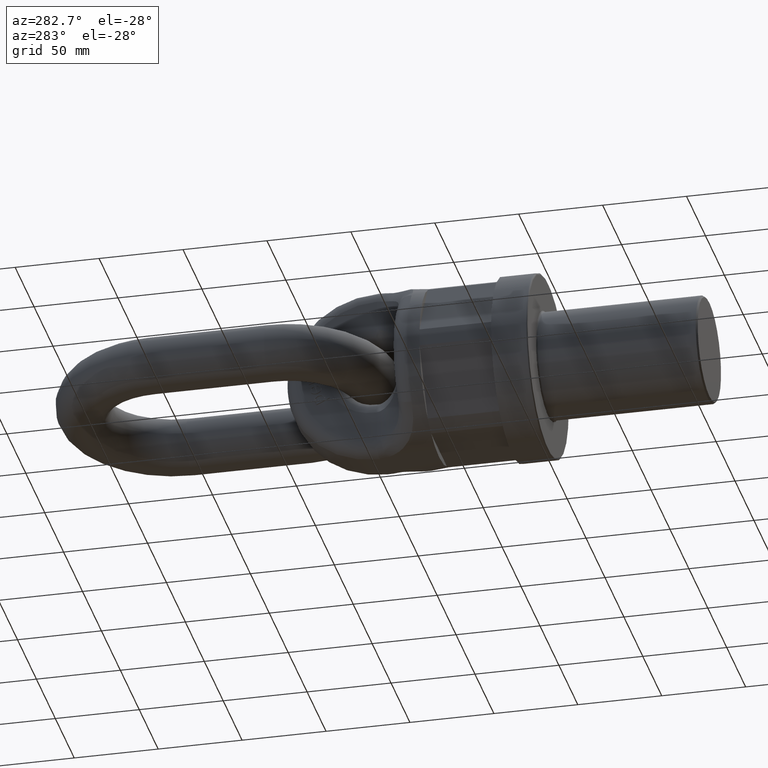
[diagram: clean part render]
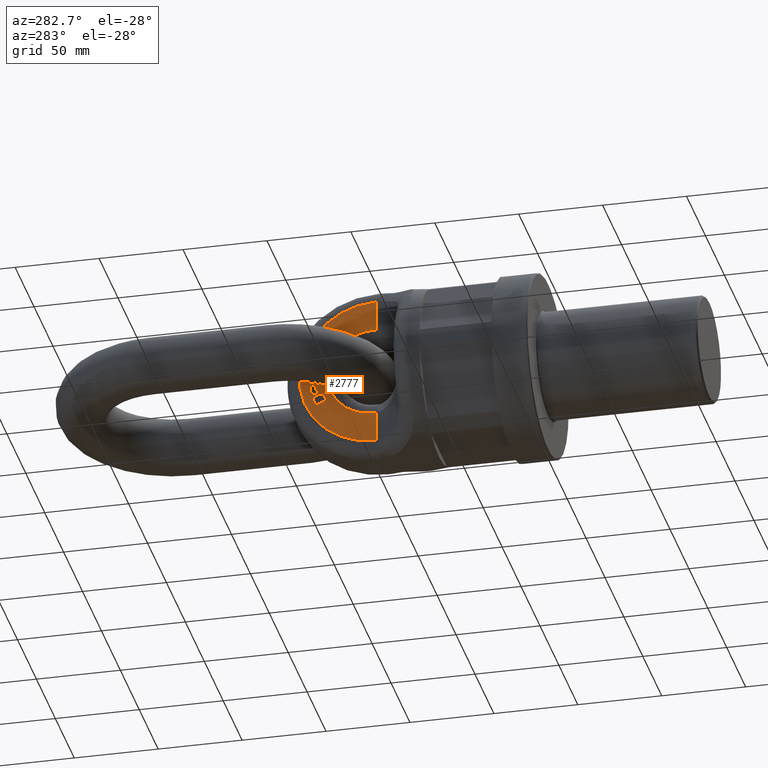
[diagram: same view with one face highlighted and labeled with its STEP entity id]
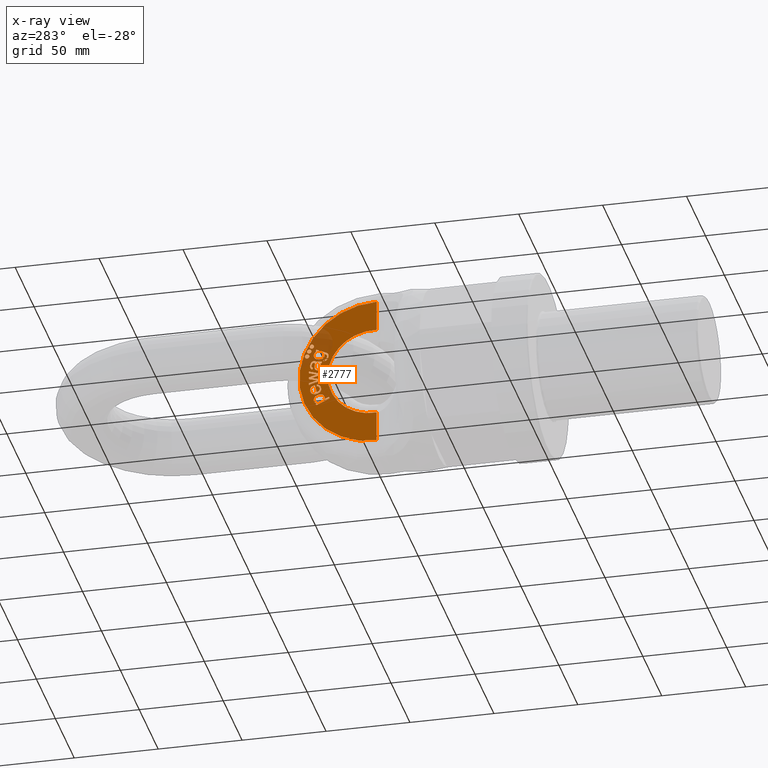
[diagram: x-ray of the same camera — body ghosted, the highlighted face saturated]
A machine part, auxiliary view. The second image highlights one B-rep face of the part: STEP entity #2777.
The next image is the same camera in x-ray: the body ghosted, the highlighted face saturated — about 11% of this face is hidden behind the body in this view.
In plain terms, the highlighted planar face has unit normal (-1, -0, -0).
Its self-contained STEP definition (entity closure, byte-faithful):
#505=B_SPLINE_CURVE_WITH_KNOTS('',3,(#8318,#8319,#8320,#8321,#8322,#8323),
 .UNSPECIFIED.,.F.,.F.,(4,2,4),(0.,0.670501232539032,1.),.UNSPECIFIED.);
#506=B_SPLINE_CURVE_WITH_KNOTS('',3,(#8325,#8326,#8327,#8328),
 .UNSPECIFIED.,.F.,.F.,(4,4),(0.,1.),.UNSPECIFIED.);
#507=B_SPLINE_CURVE_WITH_KNOTS('',3,(#8330,#8331,#8332,#8333,#8334,#8335),
 .UNSPECIFIED.,.F.,.F.,(4,2,4),(0.,0.470198675496687,1.),.UNSPECIFIED.);
#508=B_SPLINE_CURVE_WITH_KNOTS('',3,(#8337,#8338,#8339,#8340),
 .UNSPECIFIED.,.F.,.F.,(4,4),(0.,1.),.UNSPECIFIED.);
#509=B_SPLINE_CURVE_WITH_KNOTS('',3,(#8344,#8345,#8346,#8347),
 .UNSPECIFIED.,.F.,.F.,(4,4),(0.,1.),.UNSPECIFIED.);
#510=B_SPLINE_CURVE_WITH_KNOTS('',3,(#8349,#8350,#8351,#8352,#8353,#8354),
 .UNSPECIFIED.,.F.,.F.,(4,2,4),(0.,0.444196428571431,1.),.UNSPECIFIED.);
#511=B_SPLINE_CURVE_WITH_KNOTS('',3,(#8356,#8357,#8358,#8359,#8360,#8361),
 .UNSPECIFIED.,.F.,.F.,(4,2,4),(0.,0.499999999999984,1.),.UNSPECIFIED.);
#512=B_SPLINE_CURVE_WITH_KNOTS('',3,(#8363,#8364,#8365,#8366,#8367,#8368,
#8369,#8370,#8371,#8372,#8373,#8374,#8375,#8376),.UNSPECIFIED.,.F.,.F.,
(4,2,2,2,2,2,4),(0.,0.149537296690965,0.323681996634877,0.497826696578794,
0.672812675266401,0.847798653954006,1.),.UNSPECIFIED.);
#513=B_SPLINE_CURVE_WITH_KNOTS('',3,(#8381,#8382,#8383,#8384),
 .UNSPECIFIED.,.F.,.F.,(4,4),(0.,1.),.UNSPECIFIED.);
#514=B_SPLINE_CURVE_WITH_KNOTS('',3,(#8389,#8390,#8391,#8392),
 .UNSPECIFIED.,.F.,.F.,(4,4),(0.,1.),.UNSPECIFIED.);
#515=B_SPLINE_CURVE_WITH_KNOTS('',3,(#8394,#8395,#8396,#8397,#8398,#8399),
 .UNSPECIFIED.,.F.,.F.,(4,2,4),(0.,0.565320665083133,1.),.UNSPECIFIED.);
#516=B_SPLINE_CURVE_WITH_KNOTS('',3,(#8401,#8402,#8403,#8404),
 .UNSPECIFIED.,.F.,.F.,(4,4),(0.,1.),.UNSPECIFIED.);
#517=B_SPLINE_CURVE_WITH_KNOTS('',3,(#8408,#8409,#8410,#8411),
 .UNSPECIFIED.,.F.,.F.,(4,4),(0.,1.),.UNSPECIFIED.);
#518=B_SPLINE_CURVE_WITH_KNOTS('',3,(#8413,#8414,#8415,#8416,#8417,#8418),
 .UNSPECIFIED.,.F.,.F.,(4,2,4),(0.,0.429530201342282,1.),.UNSPECIFIED.);
#519=B_SPLINE_CURVE_WITH_KNOTS('',3,(#8420,#8421,#8422,#8423,#8424,#8425,
#8426,#8427,#8428,#8429,#8430,#8431),.UNSPECIFIED.,.F.,.F.,(4,2,2,2,2,4),
(0.,0.253866185683637,0.504362466247582,0.754858746811527,0.877429373405762,
1.),.UNSPECIFIED.);
#520=B_SPLINE_CURVE_WITH_KNOTS('',3,(#8455,#8456,#8457,#8458),
 .UNSPECIFIED.,.F.,.F.,(4,4),(0.,1.),.UNSPECIFIED.);
#521=B_SPLINE_CURVE_WITH_KNOTS('',3,(#8460,#8461,#8462,#8463),
 .UNSPECIFIED.,.F.,.F.,(4,4),(0.,1.),.UNSPECIFIED.);
#522=B_SPLINE_CURVE_WITH_KNOTS('',3,(#8485,#8486,#8487,#8488),
 .UNSPECIFIED.,.F.,.F.,(4,4),(0.,1.),.UNSPECIFIED.);
#523=B_SPLINE_CURVE_WITH_KNOTS('',3,(#8493,#8494,#8495,#8496),
 .UNSPECIFIED.,.F.,.F.,(4,4),(0.,1.),.UNSPECIFIED.);
#524=B_SPLINE_CURVE_WITH_KNOTS('',3,(#8501,#8502,#8503,#8504),
 .UNSPECIFIED.,.F.,.F.,(4,4),(0.,1.),.UNSPECIFIED.);
#525=B_SPLINE_CURVE_WITH_KNOTS('',3,(#8506,#8507,#8508,#8509,#8510,#8511,
#8512,#8513,#8514,#8515),.UNSPECIFIED.,.F.,.F.,(4,2,2,2,4),(0.,0.296954694318543,
0.533565653962729,0.771641518085927,1.),.UNSPECIFIED.);
#526=B_SPLINE_CURVE_WITH_KNOTS('',3,(#8517,#8518,#8519,#8520),
 .UNSPECIFIED.,.F.,.F.,(4,4),(0.,1.),.UNSPECIFIED.);
#527=B_SPLINE_CURVE_WITH_KNOTS('',3,(#8524,#8525,#8526,#8527),
 .UNSPECIFIED.,.F.,.F.,(4,4),(0.,1.),.UNSPECIFIED.);
#528=B_SPLINE_CURVE_WITH_KNOTS('',3,(#8529,#8530,#8531,#8532),
 .UNSPECIFIED.,.F.,.F.,(4,4),(0.,1.),.UNSPECIFIED.);
#529=B_SPLINE_CURVE_WITH_KNOTS('',3,(#8534,#8535,#8536,#8537),
 .UNSPECIFIED.,.F.,.F.,(4,4),(0.,1.),.UNSPECIFIED.);
#530=B_SPLINE_CURVE_WITH_KNOTS('',3,(#8539,#8540,#8541,#8542),
 .UNSPECIFIED.,.F.,.F.,(4,4),(0.,1.),.UNSPECIFIED.);
#531=B_SPLINE_CURVE_WITH_KNOTS('',3,(#8544,#8545,#8546,#8547,#8548,#8549),
 .UNSPECIFIED.,.F.,.F.,(4,2,4),(0.,0.44021739130435,1.),.UNSPECIFIED.);
#532=B_SPLINE_CURVE_WITH_KNOTS('',3,(#8551,#8552,#8553,#8554),
 .UNSPECIFIED.,.F.,.F.,(4,4),(0.,1.),.UNSPECIFIED.);
#533=B_SPLINE_CURVE_WITH_KNOTS('',3,(#8558,#8559,#8560,#8561),
 .UNSPECIFIED.,.F.,.F.,(4,4),(0.,1.),.UNSPECIFIED.);
#534=B_SPLINE_CURVE_WITH_KNOTS('',3,(#8563,#8564,#8565,#8566,#8567,#8568),
 .UNSPECIFIED.,.F.,.F.,(4,2,4),(0.,0.52387640449438,1.),.UNSPECIFIED.);
#535=B_SPLINE_CURVE_WITH_KNOTS('',3,(#8570,#8571,#8572,#8573),
 .UNSPECIFIED.,.F.,.F.,(4,4),(0.,1.),.UNSPECIFIED.);
#536=B_SPLINE_CURVE_WITH_KNOTS('',3,(#8575,#8576,#8577,#8578,#8579,#8580,
#8581,#8582),.UNSPECIFIED.,.F.,.F.,(4,2,2,4),(0.,0.269230769230785,0.527644230769252,
1.),.UNSPECIFIED.);
#537=B_SPLINE_CURVE_WITH_KNOTS('',3,(#8586,#8587,#8588,#8589),
 .UNSPECIFIED.,.F.,.F.,(4,4),(0.,1.),.UNSPECIFIED.);
#538=B_SPLINE_CURVE_WITH_KNOTS('',3,(#8591,#8592,#8593,#8594),
 .UNSPECIFIED.,.F.,.F.,(4,4),(0.,1.),.UNSPECIFIED.);
#539=B_SPLINE_CURVE_WITH_KNOTS('',3,(#8596,#8597,#8598,#8599,#8600,#8601,
#8602,#8603,#8604,#8605),.UNSPECIFIED.,.F.,.F.,(4,2,2,2,4),(0.,0.245990994549338,
0.507925849856496,0.769860705163653,1.),.UNSPECIFIED.);
#2181=LINE('',#8315,#2483);
#2182=LINE('',#8342,#2484);
#2183=LINE('',#8378,#2485);
#2184=LINE('',#8380,#2486);
#2185=LINE('',#8387,#2487);
#2186=LINE('',#8406,#2488);
#2187=LINE('',#8438,#2489);
#2188=LINE('',#8443,#2490);
#2189=LINE('',#8446,#2491);
#2190=LINE('',#8449,#2492);
#2191=LINE('',#8451,#2493);
#2192=LINE('',#8453,#2494);
#2193=LINE('',#8465,#2495);
#2194=LINE('',#8467,#2496);
#2195=LINE('',#8469,#2497);
#2196=LINE('',#8471,#2498);
#2197=LINE('',#8473,#2499);
#2198=LINE('',#8475,#2500);
#2199=LINE('',#8477,#2501);
#2200=LINE('',#8479,#2502);
#2201=LINE('',#8481,#2503);
#2202=LINE('',#8483,#2504);
#2203=LINE('',#8490,#2505);
#2204=LINE('',#8492,#2506);
#2205=LINE('',#8499,#2507);
#2206=LINE('',#8522,#2508);
#2207=LINE('',#8556,#2509);
#2208=LINE('',#8583,#2510);
#2209=LINE('',#8607,#2511);
#2210=LINE('',#8609,#2512);
#2211=LINE('',#8611,#2513);
#2212=LINE('',#8613,#2514);
#2213=LINE('',#8615,#2515);
#2214=LINE('',#8617,#2516);
#2483=VECTOR('',#6247,1.);
#2484=VECTOR('',#6248,1.);
#2485=VECTOR('',#6249,1.);
#2486=VECTOR('',#6250,1.);
#2487=VECTOR('',#6251,1.);
#2488=VECTOR('',#6252,1.);
#2489=VECTOR('',#6259,1.);
#2490=VECTOR('',#6262,1.);
#2491=VECTOR('',#6265,1.);
#2492=VECTOR('',#6266,1.);
#2493=VECTOR('',#6267,1.);
#2494=VECTOR('',#6268,1.);
#2495=VECTOR('',#6269,1.);
#2496=VECTOR('',#6270,1.);
#2497=VECTOR('',#6271,1.);
#2498=VECTOR('',#6272,1.);
#2499=VECTOR('',#6273,1.);
#2500=VECTOR('',#6274,1.);
#2501=VECTOR('',#6275,1.);
#2502=VECTOR('',#6276,1.);
#2503=VECTOR('',#6277,1.);
#2504=VECTOR('',#6278,1.);
#2505=VECTOR('',#6279,1.);
#2506=VECTOR('',#6280,1.);
#2507=VECTOR('',#6281,1.);
#2508=VECTOR('',#6282,1.);
#2509=VECTOR('',#6283,1.);
#2510=VECTOR('',#6284,1.);
#2511=VECTOR('',#6285,1.);
#2512=VECTOR('',#6286,1.);
#2513=VECTOR('',#6287,1.);
#2514=VECTOR('',#6288,1.);
#2515=VECTOR('',#6289,1.);
#2516=VECTOR('',#6290,1.);
#2777=ADVANCED_FACE('',(#3034,#3035,#3036,#3037,#3038,#3039,#3040,#3041,
#3042),#2946,.T.);
#2946=PLANE('',#5734);
#3034=FACE_BOUND('',#3221,.T.);
#3035=FACE_BOUND('',#3222,.T.);
#3036=FACE_BOUND('',#3223,.T.);
#3037=FACE_BOUND('',#3224,.T.);
#3038=FACE_BOUND('',#3225,.T.);
#3039=FACE_BOUND('',#3226,.T.);
#3040=FACE_BOUND('',#3227,.T.);
#3041=FACE_BOUND('',#3228,.T.);
#3042=FACE_BOUND('',#3229,.T.);
#3221=EDGE_LOOP('',(#3998,#3999,#4000,#4001,#4002,#4003,#4004,#4005,#4006,
#4007,#4008,#4009));
#3222=EDGE_LOOP('',(#4010,#4011,#4012,#4013,#4014,#4015,#4016,#4017,#4018));
#3223=EDGE_LOOP('',(#4019));
#3224=EDGE_LOOP('',(#4020));
#3225=EDGE_LOOP('',(#4021));
#3226=EDGE_LOOP('',(#4022,#4023,#4024,#4025));
#3227=EDGE_LOOP('',(#4026,#4027,#4028,#4029,#4030,#4031,#4032,#4033,#4034,
#4035,#4036,#4037,#4038,#4039,#4040,#4041,#4042,#4043,#4044));
#3228=EDGE_LOOP('',(#4045,#4046,#4047,#4048,#4049,#4050,#4051,#4052,#4053,
#4054,#4055,#4056,#4057,#4058,#4059,#4060,#4061));
#3229=EDGE_LOOP('',(#4062,#4063,#4064,#4065,#4066,#4067,#4068,#4069,#4070,
#4071));
#3998=ORIENTED_EDGE('',*,*,#5269,.T.);
#3999=ORIENTED_EDGE('',*,*,#5270,.T.);
#4000=ORIENTED_EDGE('',*,*,#5271,.T.);
#4001=ORIENTED_EDGE('',*,*,#5272,.T.);
#4002=ORIENTED_EDGE('',*,*,#5273,.T.);
#4003=ORIENTED_EDGE('',*,*,#5274,.T.);
#4004=ORIENTED_EDGE('',*,*,#5275,.T.);
#4005=ORIENTED_EDGE('',*,*,#5276,.T.);
#4006=ORIENTED_EDGE('',*,*,#5277,.T.);
#4007=ORIENTED_EDGE('',*,*,#5278,.T.);
#4008=ORIENTED_EDGE('',*,*,#5279,.T.);
#4009=ORIENTED_EDGE('',*,*,#5280,.T.);
#4010=ORIENTED_EDGE('',*,*,#5281,.T.);
#4011=ORIENTED_EDGE('',*,*,#5282,.T.);
#4012=ORIENTED_EDGE('',*,*,#5283,.T.);
#4013=ORIENTED_EDGE('',*,*,#5284,.T.);
#4014=ORIENTED_EDGE('',*,*,#5285,.T.);
#4015=ORIENTED_EDGE('',*,*,#5286,.T.);
#4016=ORIENTED_EDGE('',*,*,#5287,.T.);
#4017=ORIENTED_EDGE('',*,*,#5288,.T.);
#4018=ORIENTED_EDGE('',*,*,#5289,.T.);
#4019=ORIENTED_EDGE('',*,*,#5290,.T.);
#4020=ORIENTED_EDGE('',*,*,#5291,.T.);
#4021=ORIENTED_EDGE('',*,*,#5292,.T.);
#4022=ORIENTED_EDGE('',*,*,#5293,.T.);
#4023=ORIENTED_EDGE('',*,*,#5294,.T.);
#4024=ORIENTED_EDGE('',*,*,#5295,.T.);
#4025=ORIENTED_EDGE('',*,*,#5296,.T.);
#4026=ORIENTED_EDGE('',*,*,#5297,.T.);
#4027=ORIENTED_EDGE('',*,*,#5298,.T.);
#4028=ORIENTED_EDGE('',*,*,#5299,.T.);
#4029=ORIENTED_EDGE('',*,*,#5300,.T.);
#4030=ORIENTED_EDGE('',*,*,#5301,.T.);
#4031=ORIENTED_EDGE('',*,*,#5302,.T.);
#4032=ORIENTED_EDGE('',*,*,#5303,.T.);
#4033=ORIENTED_EDGE('',*,*,#5304,.T.);
#4034=ORIENTED_EDGE('',*,*,#5305,.T.);
#4035=ORIENTED_EDGE('',*,*,#5306,.T.);
#4036=ORIENTED_EDGE('',*,*,#5307,.T.);
#4037=ORIENTED_EDGE('',*,*,#5308,.T.);
#4038=ORIENTED_EDGE('',*,*,#5309,.T.);
#4039=ORIENTED_EDGE('',*,*,#5310,.T.);
#4040=ORIENTED_EDGE('',*,*,#5311,.T.);
#4041=ORIENTED_EDGE('',*,*,#5312,.T.);
#4042=ORIENTED_EDGE('',*,*,#5313,.T.);
#4043=ORIENTED_EDGE('',*,*,#5314,.T.);
#4044=ORIENTED_EDGE('',*,*,#5315,.T.);
#4045=ORIENTED_EDGE('',*,*,#5316,.T.);
#4046=ORIENTED_EDGE('',*,*,#5317,.T.);
#4047=ORIENTED_EDGE('',*,*,#5318,.T.);
#4048=ORIENTED_EDGE('',*,*,#5319,.T.);
#4049=ORIENTED_EDGE('',*,*,#5320,.T.);
#4050=ORIENTED_EDGE('',*,*,#5321,.T.);
#4051=ORIENTED_EDGE('',*,*,#5322,.T.);
#4052=ORIENTED_EDGE('',*,*,#5323,.T.);
#4053=ORIENTED_EDGE('',*,*,#5324,.T.);
#4054=ORIENTED_EDGE('',*,*,#5325,.T.);
#4055=ORIENTED_EDGE('',*,*,#5326,.T.);
#4056=ORIENTED_EDGE('',*,*,#5327,.T.);
#4057=ORIENTED_EDGE('',*,*,#5328,.T.);
#4058=ORIENTED_EDGE('',*,*,#5329,.T.);
#4059=ORIENTED_EDGE('',*,*,#5330,.T.);
#4060=ORIENTED_EDGE('',*,*,#5331,.T.);
#4061=ORIENTED_EDGE('',*,*,#5332,.T.);
#4062=ORIENTED_EDGE('',*,*,#5333,.T.);
#4063=ORIENTED_EDGE('',*,*,#5334,.T.);
#4064=ORIENTED_EDGE('',*,*,#5335,.T.);
#4065=ORIENTED_EDGE('',*,*,#5336,.T.);
#4066=ORIENTED_EDGE('',*,*,#5337,.T.);
#4067=ORIENTED_EDGE('',*,*,#5338,.T.);
#4068=ORIENTED_EDGE('',*,*,#5339,.T.);
#4069=ORIENTED_EDGE('',*,*,#5340,.T.);
#4070=ORIENTED_EDGE('',*,*,#5341,.T.);
#4071=ORIENTED_EDGE('',*,*,#5342,.T.);
#4765=VERTEX_POINT('',#8316);
#4766=VERTEX_POINT('',#8317);
#4767=VERTEX_POINT('',#8324);
#4768=VERTEX_POINT('',#8329);
#4769=VERTEX_POINT('',#8336);
#4770=VERTEX_POINT('',#8341);
#4771=VERTEX_POINT('',#8343);
#4772=VERTEX_POINT('',#8348);
#4773=VERTEX_POINT('',#8355);
#4774=VERTEX_POINT('',#8362);
#4775=VERTEX_POINT('',#8377);
#4776=VERTEX_POINT('',#8379);
#4777=VERTEX_POINT('',#8385);
#4778=VERTEX_POINT('',#8386);
#4779=VERTEX_POINT('',#8388);
#4780=VERTEX_POINT('',#8393);
#4781=VERTEX_POINT('',#8400);
#4782=VERTEX_POINT('',#8405);
#4783=VERTEX_POINT('',#8407);
#4784=VERTEX_POINT('',#8412);
#4785=VERTEX_POINT('',#8419);
#4786=VERTEX_POINT('',#8433);
#4787=VERTEX_POINT('',#8435);
#4788=VERTEX_POINT('',#8437);
#4789=VERTEX_POINT('',#8439);
#4790=VERTEX_POINT('',#8440);
#4791=VERTEX_POINT('',#8442);
#4792=VERTEX_POINT('',#8444);
#4793=VERTEX_POINT('',#8447);
#4794=VERTEX_POINT('',#8448);
#4795=VERTEX_POINT('',#8450);
#4796=VERTEX_POINT('',#8452);
#4797=VERTEX_POINT('',#8454);
#4798=VERTEX_POINT('',#8459);
#4799=VERTEX_POINT('',#8464);
#4800=VERTEX_POINT('',#8466);
#4801=VERTEX_POINT('',#8468);
#4802=VERTEX_POINT('',#8470);
#4803=VERTEX_POINT('',#8472);
#4804=VERTEX_POINT('',#8474);
#4805=VERTEX_POINT('',#8476);
#4806=VERTEX_POINT('',#8478);
#4807=VERTEX_POINT('',#8480);
#4808=VERTEX_POINT('',#8482);
#4809=VERTEX_POINT('',#8484);
#4810=VERTEX_POINT('',#8489);
#4811=VERTEX_POINT('',#8491);
#4812=VERTEX_POINT('',#8497);
#4813=VERTEX_POINT('',#8498);
#4814=VERTEX_POINT('',#8500);
#4815=VERTEX_POINT('',#8505);
#4816=VERTEX_POINT('',#8516);
#4817=VERTEX_POINT('',#8521);
#4818=VERTEX_POINT('',#8523);
#4819=VERTEX_POINT('',#8528);
#4820=VERTEX_POINT('',#8533);
#4821=VERTEX_POINT('',#8538);
#4822=VERTEX_POINT('',#8543);
#4823=VERTEX_POINT('',#8550);
#4824=VERTEX_POINT('',#8555);
#4825=VERTEX_POINT('',#8557);
#4826=VERTEX_POINT('',#8562);
#4827=VERTEX_POINT('',#8569);
#4828=VERTEX_POINT('',#8574);
#4829=VERTEX_POINT('',#8584);
#4830=VERTEX_POINT('',#8585);
#4831=VERTEX_POINT('',#8590);
#4832=VERTEX_POINT('',#8595);
#4833=VERTEX_POINT('',#8606);
#4834=VERTEX_POINT('',#8608);
#4835=VERTEX_POINT('',#8610);
#4836=VERTEX_POINT('',#8612);
#4837=VERTEX_POINT('',#8614);
#4838=VERTEX_POINT('',#8616);
#5269=EDGE_CURVE('',#4765,#4766,#2181,.T.);
#5270=EDGE_CURVE('',#4766,#4767,#505,.T.);
#5271=EDGE_CURVE('',#4767,#4768,#506,.T.);
#5272=EDGE_CURVE('',#4768,#4769,#507,.T.);
#5273=EDGE_CURVE('',#4769,#4770,#508,.T.);
#5274=EDGE_CURVE('',#4770,#4771,#2182,.T.);
#5275=EDGE_CURVE('',#4771,#4772,#509,.T.);
#5276=EDGE_CURVE('',#4772,#4773,#510,.T.);
#5277=EDGE_CURVE('',#4773,#4774,#511,.T.);
#5278=EDGE_CURVE('',#4774,#4775,#512,.T.);
#5279=EDGE_CURVE('',#4775,#4776,#2183,.T.);
#5280=EDGE_CURVE('',#4776,#4765,#2184,.T.);
#5281=EDGE_CURVE('',#4777,#4778,#513,.T.);
#5282=EDGE_CURVE('',#4778,#4779,#2185,.T.);
#5283=EDGE_CURVE('',#4779,#4780,#514,.T.);
#5284=EDGE_CURVE('',#4780,#4781,#515,.T.);
#5285=EDGE_CURVE('',#4781,#4782,#516,.T.);
#5286=EDGE_CURVE('',#4782,#4783,#2186,.T.);
#5287=EDGE_CURVE('',#4783,#4784,#517,.T.);
#5288=EDGE_CURVE('',#4784,#4785,#518,.T.);
#5289=EDGE_CURVE('',#4785,#4777,#519,.T.);
#5290=EDGE_CURVE('',#4786,#4786,#5582,.T.);
#5291=EDGE_CURVE('',#4787,#4787,#5583,.T.);
#5292=EDGE_CURVE('',#4788,#4788,#5584,.T.);
#5293=EDGE_CURVE('',#4789,#4790,#2187,.T.);
#5294=EDGE_CURVE('',#4790,#4791,#5585,.T.);
#5295=EDGE_CURVE('',#4791,#4792,#2188,.T.);
#5296=EDGE_CURVE('',#4792,#4789,#5586,.T.);
#5297=EDGE_CURVE('',#4793,#4794,#2189,.T.);
#5298=EDGE_CURVE('',#4794,#4795,#2190,.T.);
#5299=EDGE_CURVE('',#4795,#4796,#2191,.T.);
#5300=EDGE_CURVE('',#4796,#4797,#2192,.T.);
#5301=EDGE_CURVE('',#4797,#4798,#520,.T.);
#5302=EDGE_CURVE('',#4798,#4799,#521,.T.);
#5303=EDGE_CURVE('',#4799,#4800,#2193,.T.);
#5304=EDGE_CURVE('',#4800,#4801,#2194,.T.);
#5305=EDGE_CURVE('',#4801,#4802,#2195,.T.);
#5306=EDGE_CURVE('',#4802,#4803,#2196,.T.);
#5307=EDGE_CURVE('',#4803,#4804,#2197,.T.);
#5308=EDGE_CURVE('',#4804,#4805,#2198,.T.);
#5309=EDGE_CURVE('',#4805,#4806,#2199,.T.);
#5310=EDGE_CURVE('',#4806,#4807,#2200,.T.);
#5311=EDGE_CURVE('',#4807,#4808,#2201,.T.);
#5312=EDGE_CURVE('',#4808,#4809,#2202,.T.);
#5313=EDGE_CURVE('',#4809,#4810,#522,.T.);
#5314=EDGE_CURVE('',#4810,#4811,#2203,.T.);
#5315=EDGE_CURVE('',#4811,#4793,#2204,.T.);
#5316=EDGE_CURVE('',#4812,#4813,#523,.T.);
#5317=EDGE_CURVE('',#4813,#4814,#2205,.T.);
#5318=EDGE_CURVE('',#4814,#4815,#524,.T.);
#5319=EDGE_CURVE('',#4815,#4816,#525,.T.);
#5320=EDGE_CURVE('',#4816,#4817,#526,.T.);
#5321=EDGE_CURVE('',#4817,#4818,#2206,.T.);
#5322=EDGE_CURVE('',#4818,#4819,#527,.T.);
#5323=EDGE_CURVE('',#4819,#4820,#528,.T.);
#5324=EDGE_CURVE('',#4820,#4821,#529,.T.);
#5325=EDGE_CURVE('',#4821,#4822,#530,.T.);
#5326=EDGE_CURVE('',#4822,#4823,#531,.T.);
#5327=EDGE_CURVE('',#4823,#4824,#532,.T.);
#5328=EDGE_CURVE('',#4824,#4825,#2207,.T.);
#5329=EDGE_CURVE('',#4825,#4826,#533,.T.);
#5330=EDGE_CURVE('',#4826,#4827,#534,.T.);
#5331=EDGE_CURVE('',#4827,#4828,#535,.T.);
#5332=EDGE_CURVE('',#4828,#4812,#536,.T.);
#5333=EDGE_CURVE('',#4829,#4830,#2208,.T.);
#5334=EDGE_CURVE('',#4830,#4831,#537,.T.);
#5335=EDGE_CURVE('',#4831,#4832,#538,.T.);
#5336=EDGE_CURVE('',#4832,#4833,#539,.T.);
#5337=EDGE_CURVE('',#4833,#4834,#2209,.T.);
#5338=EDGE_CURVE('',#4834,#4835,#2210,.T.);
#5339=EDGE_CURVE('',#4835,#4836,#2211,.T.);
#5340=EDGE_CURVE('',#4836,#4837,#2212,.T.);
#5341=EDGE_CURVE('',#4837,#4838,#2213,.T.);
#5342=EDGE_CURVE('',#4838,#4829,#2214,.T.);
#5582=CIRCLE('',#5729,1.3125);
#5583=CIRCLE('',#5730,1.3125);
#5584=CIRCLE('',#5731,1.3125);
#5585=CIRCLE('',#5732,27.25);
#5586=CIRCLE('',#5733,45.596052460712);
#5729=AXIS2_PLACEMENT_3D('',#8432,#6253,#6254);
#5730=AXIS2_PLACEMENT_3D('',#8434,#6255,#6256);
#5731=AXIS2_PLACEMENT_3D('',#8436,#6257,#6258);
#5732=AXIS2_PLACEMENT_3D('',#8441,#6260,#6261);
#5733=AXIS2_PLACEMENT_3D('',#8445,#6263,#6264);
#5734=AXIS2_PLACEMENT_3D('',#8618,#6291,#6292);
#6247=DIRECTION('',(-1.99639525402623E-15,-0.411610713964746,0.911359764390239));
#6248=DIRECTION('',(-1.78284111275085E-15,-0.543765842824925,0.839236979748211));
#6249=DIRECTION('',(-1.99639525402619E-15,-0.41161071396478,0.911359764390224));
#6250=DIRECTION('',(-1.27177549822167E-15,0.911359764390248,0.411610713964727));
#6251=DIRECTION('',(2.35857968153149E-15,-0.225733312080242,-0.97418913554673));
#6252=DIRECTION('',(-2.36550774891018E-15,0.10648400670323,0.994314415221074));
#6253=DIRECTION('',(1.,3.37307342551046E-16,2.34291072916505E-15));
#6254=DIRECTION('',(0.,0.999999999999996,0.));
#6255=DIRECTION('',(1.,3.37307342551046E-16,2.34291072916505E-15));
#6256=DIRECTION('',(0.,0.999999999999996,0.));
#6257=DIRECTION('',(1.,3.37307342551046E-16,2.34291072916505E-15));
#6258=DIRECTION('',(0.,0.999999999999996,0.));
#6259=DIRECTION('',(-2.34291072916505E-15,0.,1.));
#6260=DIRECTION('',(1.,3.37307342551046E-16,2.34291072916505E-15));
#6261=DIRECTION('',(-3.81957462600398E-16,1.,-6.78492751050182E-31));
#6262=DIRECTION('',(-2.34291072916505E-15,0.,1.));
#6263=DIRECTION('',(-1.,-3.37307342551046E-16,-2.34291072916505E-15));
#6264=DIRECTION('',(-3.04363800348118E-16,1.,-8.10988077621348E-31));
#6265=DIRECTION('',(-2.34309694667738E-15,0.00055313330946626,0.999999847021759));
#6266=DIRECTION('',(1.03295913939787E-15,-0.9527617773271,-0.303718612640888));
#6267=DIRECTION('',(2.34309694667739E-15,-0.000553133309484156,-0.999999847021759));
#6268=DIRECTION('',(2.82645960544866E-16,0.965697504674459,-0.259669654494944));
#6269=DIRECTION('',(2.34309694667725E-15,-0.000553133309085936,-0.99999984702176));
#6270=DIRECTION('',(9.20967198473562E-16,-0.967248144581379,-0.253832674815282));
#6271=DIRECTION('',(2.34309694667739E-15,-0.000553133309488404,-0.999999847021759));
#6272=DIRECTION('',(3.78283526449958E-16,0.954300471036737,-0.29884880956608));
#6273=DIRECTION('',(-2.34309694667738E-15,0.000553133309459686,0.999999847021759));
#6274=DIRECTION('',(-3.07797154723148E-16,-0.962861344379193,0.269996354605562));
#6275=DIRECTION('',(-9.06008715966485E-16,0.968964212483531,0.247201041515141));
#6276=DIRECTION('',(-9.47303705297019E-16,0.964103609594579,0.265526326315686));
#6277=DIRECTION('',(-2.34309694667738E-15,0.00055313330947841,0.999999847021759));
#6278=DIRECTION('',(-2.67894438150212E-16,-0.967307798577984,0.253605249965799));
#6279=DIRECTION('',(-2.34309694667762E-15,0.000553133310193782,0.999999847021759));
#6280=DIRECTION('',(-9.94978107199618E-16,0.958004621914464,0.286752758296282));
#6281=DIRECTION('',(2.20724391910459E-15,0.224655461194788,-0.974438260617551));
#6282=DIRECTION('',(-2.3081189254176E-15,-0.0805662748611453,0.99674925400273));
#6283=DIRECTION('',(2.08101560842635E-15,0.346395842706649,-0.938088439410459));
#6284=DIRECTION('',(-2.27334572317814E-15,0.412618668825751,0.910903855594247));
#6285=DIRECTION('',(2.2733457231777E-15,-0.412618668826353,-0.910903855593975));
#6286=DIRECTION('',(-6.59474147395718E-16,-0.910903855594236,0.412618668825776));
#6287=DIRECTION('',(2.27334572317813E-15,-0.412618668825759,-0.910903855594244));
#6288=DIRECTION('',(6.59474147395723E-16,0.910903855594235,-0.412618668825778));
#6289=DIRECTION('',(-2.27334572317813E-15,0.412618668825764,0.910903855594242));
#6290=DIRECTION('',(-6.59474147395736E-16,-0.910903855594233,0.412618668825784));
#6291=DIRECTION('',(-1.,-3.37307342551046E-16,-2.34291072916505E-15));
#6292=DIRECTION('',(-3.36536354339501E-16,1.,0.));
#8315=CARTESIAN_POINT('',(-16.4999999999999,167.269886705721,-54.5067273599384));
#8316=CARTESIAN_POINT('',(-16.5,134.83424911799,17.3100014736398));
#8317=CARTESIAN_POINT('',(-16.5,134.418942023565,18.2295455061035));
#8318=CARTESIAN_POINT('',(-16.5000000000001,134.418942023565,18.2295455061035));
#8319=CARTESIAN_POINT('',(-16.5000000000001,132.754294103958,17.4777162664749));
#8320=CARTESIAN_POINT('',(-16.5000000000001,131.08964618435,16.7258870268463));
#8321=CARTESIAN_POINT('',(-16.5000000000001,128.606954372876,15.6045926829394));
#8322=CARTESIAN_POINT('',(-16.5,128.032450973168,15.2451560677094));
#8323=CARTESIAN_POINT('',(-16.5,127.701488065617,14.8957479415277));
#8324=CARTESIAN_POINT('',(-16.5,127.701488065617,14.8957479415277));
#8325=CARTESIAN_POINT('',(-16.5,127.701488065617,14.8957479415277));
#8326=CARTESIAN_POINT('',(-16.5,127.372565167771,14.5472611747083));
#8327=CARTESIAN_POINT('',(-16.5,127.192464428224,14.1085438495244));
#8328=CARTESIAN_POINT('',(-16.5,127.159310871381,13.5837474063032));
#8329=CARTESIAN_POINT('',(-16.5,127.159310871381,13.5837474063032));
#8330=CARTESIAN_POINT('',(-16.5,127.159310871381,13.5837474063032));
#8331=CARTESIAN_POINT('',(-16.5,127.12505479263,13.0559538835561));
#8332=CARTESIAN_POINT('',(-16.5,127.241601281496,12.4988033987178));
#8333=CARTESIAN_POINT('',(-16.5,127.807843911366,11.2450684199185));
#8334=CARTESIAN_POINT('',(-16.5,128.202993842462,10.7562676509665));
#8335=CARTESIAN_POINT('',(-16.5,128.694400131265,10.4458936449325));
#8336=CARTESIAN_POINT('',(-16.5,128.694400131265,10.4458936449325));
#8337=CARTESIAN_POINT('',(-16.5,128.694400131265,10.4458936449325));
#8338=CARTESIAN_POINT('',(-16.5,129.184703898161,10.1325225593726));
#8339=CARTESIAN_POINT('',(-16.5,129.759399866086,10.1271729534472));
#8340=CARTESIAN_POINT('',(-16.5,130.418323000931,10.4247720274668));
#8341=CARTESIAN_POINT('',(-16.5,130.418323000931,10.4247720274668));
#8342=CARTESIAN_POINT('',(-16.4999999999999,169.757390211404,-50.2903324379295));
#8343=CARTESIAN_POINT('',(-16.5,129.834572988368,11.325719749608));
#8344=CARTESIAN_POINT('',(-16.5,129.834572988368,11.325719749608));
#8345=CARTESIAN_POINT('',(-16.5,129.513736761903,11.2258001675711));
#8346=CARTESIAN_POINT('',(-16.5,129.226193943636,11.2533782892999));
#8347=CARTESIAN_POINT('',(-16.5,128.972882021367,11.4063783946307));
#8348=CARTESIAN_POINT('',(-16.5,128.972882021367,11.4063783946307));
#8349=CARTESIAN_POINT('',(-16.5,128.972882021367,11.4063783946307));
#8350=CARTESIAN_POINT('',(-16.5,128.720672621005,11.5623755794873));
#8351=CARTESIAN_POINT('',(-16.5,128.499716619136,11.8449491087473));
#8352=CARTESIAN_POINT('',(-16.5,128.079722085723,12.7748717420289));
#8353=CARTESIAN_POINT('',(-16.5,128.013139801499,13.1996421392764));
#8354=CARTESIAN_POINT('',(-16.5,128.1104321972,13.5334829738424));
#8355=CARTESIAN_POINT('',(-16.5,128.1104321972,13.5334829738424));
#8356=CARTESIAN_POINT('',(-16.5,128.1104321972,13.5334829738424));
#8357=CARTESIAN_POINT('',(-16.5,128.210702090404,13.8661694476071));
#8358=CARTESIAN_POINT('',(-16.5,128.395061650525,14.1268727807826));
#8359=CARTESIAN_POINT('',(-16.5,128.941995119017,14.5038471630772));
#8360=CARTESIAN_POINT('',(-16.5,129.339849728431,14.7160247570239));
#8361=CARTESIAN_POINT('',(-16.5,129.862092213014,14.9518927537701));
#8362=CARTESIAN_POINT('',(-16.5,129.862092213014,14.9518927537701));
#8363=CARTESIAN_POINT('',(-16.5,129.862092213014,14.9518927537701));
#8364=CARTESIAN_POINT('',(-16.5,129.551167268016,14.2916458378986));
#8365=CARTESIAN_POINT('',(-16.5,129.546805365073,13.6324042333167));
#8366=CARTESIAN_POINT('',(-16.5,130.188047018767,12.2126116414313));
#8367=CARTESIAN_POINT('',(-16.5,130.74298472685,11.7235033462845));
#8368=CARTESIAN_POINT('',(-16.5,132.270869564406,11.2989516464158));
#8369=CARTESIAN_POINT('',(-16.5,133.074654038914,11.3845729695244));
#8370=CARTESIAN_POINT('',(-16.5,134.767862094398,12.1493012402251));
#8371=CARTESIAN_POINT('',(-16.5,135.37449678001,12.6931907166058));
#8372=CARTESIAN_POINT('',(-16.5,136.097792452558,14.104486354306));
#8373=CARTESIAN_POINT('',(-16.5,136.100107462269,14.8552713547369));
#8374=CARTESIAN_POINT('',(-16.5000000000001,135.42699122345,16.3456384321838));
#8375=CARTESIAN_POINT('',(-16.5000000000001,134.898633241925,16.7867721621294));
#8376=CARTESIAN_POINT('',(-16.5000000000001,134.152998193634,16.9748277280241));
#8377=CARTESIAN_POINT('',(-16.5000000000001,134.152998193634,16.9748277280241));
#8378=CARTESIAN_POINT('',(-16.4999999999999,166.578323415592,-54.8190681837531));
#8379=CARTESIAN_POINT('',(-16.5,134.142685827859,16.9976606498235));
#8380=CARTESIAN_POINT('',(-16.5,121.56436241227,11.3167288335791));
#8381=CARTESIAN_POINT('',(-16.5,137.326015283347,-5.94849880669126));
#8382=CARTESIAN_POINT('',(-16.5,136.921194113138,-5.54374837920535));
#8383=CARTESIAN_POINT('',(-16.5,136.227304360177,-5.22632155975329));
#8384=CARTESIAN_POINT('',(-16.5,135.246012540987,-4.9989424560654));
#8385=CARTESIAN_POINT('',(-16.5,137.326015283347,-5.94849880669126));
#8386=CARTESIAN_POINT('',(-16.5,135.246012540987,-4.9989424560654));
#8387=CARTESIAN_POINT('',(-16.4999999999999,123.996564137387,-53.5477823002474));
#8388=CARTESIAN_POINT('',(-16.5,134.156052772889,-9.70284262249784));
#8389=CARTESIAN_POINT('',(-16.5,134.156052772889,-9.70284262249784));
#8390=CARTESIAN_POINT('',(-16.5,133.483792435752,-9.50031140704603));
#8391=CARTESIAN_POINT('',(-16.5,133.008375192319,-9.18207278448607));
#8392=CARTESIAN_POINT('',(-16.5,132.730315174556,-8.74590793398474));
#8393=CARTESIAN_POINT('',(-16.5,132.730315174556,-8.74590793398474));
#8394=CARTESIAN_POINT('',(-16.5,132.730315174556,-8.74590793398474));
#8395=CARTESIAN_POINT('',(-16.5,132.450074508307,-8.30923779658633));
#8396=CARTESIAN_POINT('',(-16.5,132.373573593616,-7.82625892521407));
#8397=CARTESIAN_POINT('',(-16.5,132.590023151337,-6.89213535442726));
#8398=CARTESIAN_POINT('',(-16.5,132.773870601495,-6.57469071717098));
#8399=CARTESIAN_POINT('',(-16.5,133.049145868537,-6.34856976286852));
#8400=CARTESIAN_POINT('',(-16.5,133.049145868537,-6.34856976286852));
#8401=CARTESIAN_POINT('',(-16.5,133.049145868537,-6.34856976286852));
#8402=CARTESIAN_POINT('',(-16.5,133.324935267545,-6.12022998773283));
#8403=CARTESIAN_POINT('',(-16.5,133.692152483438,-5.98321389555095));
#8404=CARTESIAN_POINT('',(-16.5,134.153492296669,-5.93580795238675));
#8405=CARTESIAN_POINT('',(-16.5,134.153492296669,-5.93580795238675));
#8406=CARTESIAN_POINT('',(-16.4999999999999,128.601349416524,-57.7799850453918));
#8407=CARTESIAN_POINT('',(-16.5,134.273939798236,-4.81110678088575));
#8408=CARTESIAN_POINT('',(-16.5,134.273939798236,-4.81110678088575));
#8409=CARTESIAN_POINT('',(-16.5,133.587337288771,-4.83904752600665));
#8410=CARTESIAN_POINT('',(-16.5,133.018933331674,-5.05101934974938));
#8411=CARTESIAN_POINT('',(-16.5,132.564880761938,-5.44379285748654));
#8412=CARTESIAN_POINT('',(-16.5,132.564880761938,-5.44379285748654));
#8413=CARTESIAN_POINT('',(-16.5,132.564880761938,-5.44379285748654));
#8414=CARTESIAN_POINT('',(-16.5,132.108647543715,-5.83606107832662));
#8415=CARTESIAN_POINT('',(-16.5,131.799103078291,-6.38856857592747));
#8416=CARTESIAN_POINT('',(-16.5,131.416074763558,-8.04159009667849));
#8417=CARTESIAN_POINT('',(-16.5,131.52886725414,-8.84392590992942));
#8418=CARTESIAN_POINT('',(-16.5,131.975138969376,-9.50610396920866));
#8419=CARTESIAN_POINT('',(-16.5,131.975138969376,-9.50610396920866));
#8420=CARTESIAN_POINT('',(-16.5,131.975138969376,-9.50610396920866));
#8421=CARTESIAN_POINT('',(-16.5,132.419230036126,-10.1677767415908));
#8422=CARTESIAN_POINT('',(-16.5,133.1338450616,-10.6139173769395));
#8423=CARTESIAN_POINT('',(-16.5,135.092067403006,-11.0676650105211));
#8424=CARTESIAN_POINT('',(-16.5,135.941101463398,-10.9931956506118));
#8425=CARTESIAN_POINT('',(-16.5,137.387737957509,-10.243591724981));
#8426=CARTESIAN_POINT('',(-16.5,137.858969250124,-9.58827219121185));
#8427=CARTESIAN_POINT('',(-16.5,138.181329992858,-8.19707152878114));
#8428=CARTESIAN_POINT('',(-16.5,138.18551307219,-7.732788272601));
#8429=CARTESIAN_POINT('',(-16.5,137.985033458584,-6.79323649904055));
#8430=CARTESIAN_POINT('',(-16.5,137.733017102043,-6.35375452107426));
#8431=CARTESIAN_POINT('',(-16.5,137.326015283347,-5.94849880669126));
#8432=CARTESIAN_POINT('',(-16.5000000000001,137.122173525748,20.5625));
#8433=CARTESIAN_POINT('',(-16.5000000000001,138.434673525748,20.5625));
#8434=CARTESIAN_POINT('',(-16.5000000000001,138.670615641352,17.5215325117452));
#8435=CARTESIAN_POINT('',(-16.5000000000001,139.983115641352,17.5215325117452));
#8436=CARTESIAN_POINT('',(-16.5,139.967072052137,14.3648955315183));
#8437=CARTESIAN_POINT('',(-16.5,141.279572052137,14.3648955315183));
#8438=CARTESIAN_POINT('',(-16.5000000000001,98.5,51.0695971011457));
#8439=CARTESIAN_POINT('',(-16.4999999999999,98.5,-45.593310912896));
#8440=CARTESIAN_POINT('',(-16.4999999999999,98.5,-27.1765063979902));
#8441=CARTESIAN_POINT('',(-16.5,100.5,-3.86580270312233E-14));
#8442=CARTESIAN_POINT('',(-16.5000000000001,98.5,27.1765063979901));
#8443=CARTESIAN_POINT('',(-16.5000000000001,98.5,51.0695971011457));
#8444=CARTESIAN_POINT('',(-16.5000000000001,98.5,45.5933109128959));
#8445=CARTESIAN_POINT('',(-16.5,99.,-3.86580270312233E-14));
#8446=CARTESIAN_POINT('',(-16.4999999999999,138.882381183763,-60.4916379401937));
#8447=CARTESIAN_POINT('',(-16.5,138.917685091196,3.33366678793617));
#8448=CARTESIAN_POINT('',(-16.5,138.918275947138,4.4018647113345));
#8449=CARTESIAN_POINT('',(-16.5,133.828037447202,2.77921337077696));
#8450=CARTESIAN_POINT('',(-16.5,132.584656276377,2.38285195791012));
#8451=CARTESIAN_POINT('',(-16.4999999999999,132.549880233847,-60.4881352224499));
#8452=CARTESIAN_POINT('',(-16.5,132.584028885632,1.24860341664708));
#8453=CARTESIAN_POINT('',(-16.5,168.040180966922,-8.28532073258474));
#8454=CARTESIAN_POINT('',(-16.5,136.386546533965,0.226131639331636));
#8455=CARTESIAN_POINT('',(-16.5,136.386546533965,0.226131639331636));
#8456=CARTESIAN_POINT('',(-16.5,136.384305590516,0.221577662453441));
#8457=CARTESIAN_POINT('',(-16.5,136.556640287058,0.178207782398744));
#8458=CARTESIAN_POINT('',(-16.5,136.899075035797,0.098302082974035));
#8459=CARTESIAN_POINT('',(-16.5,136.899075035797,0.098302082974035));
#8460=CARTESIAN_POINT('',(-16.5,136.899075035797,0.098302082974035));
#8461=CARTESIAN_POINT('',(-16.5,137.241508524716,0.0161187760367493));
#8462=CARTESIAN_POINT('',(-16.5,137.427276283741,-0.0227033178745438));
#8463=CARTESIAN_POINT('',(-16.5,137.458614217038,-0.0227206519319522));
#8464=CARTESIAN_POINT('',(-16.5,137.458614217038,-0.0227206519319522));
#8465=CARTESIAN_POINT('',(-16.4999999999999,137.425167285449,-60.4908319065306));
#8466=CARTESIAN_POINT('',(-16.5,137.45860035901,-0.0477743345702935));
#8467=CARTESIAN_POINT('',(-16.5,138.092039535158,0.118457631151518));
#8468=CARTESIAN_POINT('',(-16.5,132.582604028337,-1.32737068007684));
#8469=CARTESIAN_POINT('',(-16.4999999999999,132.549880233847,-60.4881352224498));
#8470=CARTESIAN_POINT('',(-16.5,132.581972858129,-2.46845204387762));
#8471=CARTESIAN_POINT('',(-16.5,168.637250585592,-13.7595256149939));
#8472=CARTESIAN_POINT('',(-16.5,138.913379023791,-4.45119569004997));
#8473=CARTESIAN_POINT('',(-16.4999999999999,138.882381183763,-60.4916379401938));
#8474=CARTESIAN_POINT('',(-16.5,138.914006414536,-3.31694714878692));
#8475=CARTESIAN_POINT('',(-16.5,167.766084860228,-11.4073706023872));
#8476=CARTESIAN_POINT('',(-16.5,133.900713136523,-1.91116747185451));
#8477=CARTESIAN_POINT('',(-16.5,138.738043374045,-0.67707331495762));
#8478=CARTESIAN_POINT('',(-16.5,134.755911973579,-1.69299012278503));
#8479=CARTESIAN_POINT('',(-16.5,137.588916388513,-0.912744880212116));
#8480=CARTESIAN_POINT('',(-16.5,138.915538356597,-0.547376413494016));
#8481=CARTESIAN_POINT('',(-16.4999999999999,138.882381183762,-60.4916379401936));
#8482=CARTESIAN_POINT('',(-16.5,138.916160708059,0.577761697718725));
#8483=CARTESIAN_POINT('',(-16.5,168.013124040002,-7.05077460674506));
#8484=CARTESIAN_POINT('',(-16.5,135.599296617847,1.44736509380171));
#8485=CARTESIAN_POINT('',(-16.5,135.599296617847,1.44736509380171));
#8486=CARTESIAN_POINT('',(-16.5,134.683916081619,1.69157549975311));
#8487=CARTESIAN_POINT('',(-16.5,134.164674828007,1.82396398557673));
#8488=CARTESIAN_POINT('',(-16.5,134.041575376653,1.84908576629775));
#8489=CARTESIAN_POINT('',(-16.5,134.041575376653,1.84908576629775));
#8490=CARTESIAN_POINT('',(-16.4999999999999,134.00709413214,-60.4889412561052));
#8491=CARTESIAN_POINT('',(-16.5,134.041589234681,1.87413944893609));
#8492=CARTESIAN_POINT('',(-16.5,135.224047849894,2.22807643601035));
#8493=CARTESIAN_POINT('',(-16.5,132.022546912648,9.99868077234624));
#8494=CARTESIAN_POINT('',(-16.5,131.722590134937,9.96458645189209));
#8495=CARTESIAN_POINT('',(-16.5,131.414338341341,9.99636301309767));
#8496=CARTESIAN_POINT('',(-16.5,131.09779153186,10.094010455963));
#8497=CARTESIAN_POINT('',(-16.5,132.022546912648,9.99868077234624));
#8498=CARTESIAN_POINT('',(-16.5,131.09779153186,10.094010455963));
#8499=CARTESIAN_POINT('',(-16.4999999999999,147.70760565635,-61.9507032517343));
#8500=CARTESIAN_POINT('',(-16.5,131.355676762255,8.97543878177195));
#8501=CARTESIAN_POINT('',(-16.5,131.355676762255,8.97543878177195));
#8502=CARTESIAN_POINT('',(-16.5,131.573852929328,8.91588333903447));
#8503=CARTESIAN_POINT('',(-16.5,131.843758183416,8.90097693535127));
#8504=CARTESIAN_POINT('',(-16.5,132.167573730651,8.93122244493198));
#8505=CARTESIAN_POINT('',(-16.5,132.167573730651,8.93122244493198));
#8506=CARTESIAN_POINT('',(-16.5,132.167573730651,8.93122244493198));
#8507=CARTESIAN_POINT('',(-16.5,131.728139639657,8.07728327479721));
#8508=CARTESIAN_POINT('',(-16.5,131.602503921357,7.23725603953069));
#8509=CARTESIAN_POINT('',(-16.5,131.946350895217,5.74582714060933));
#8510=CARTESIAN_POINT('',(-16.5,132.230562104538,5.25958522222078));
#8511=CARTESIAN_POINT('',(-16.5,133.059406352398,4.64443752615288));
#8512=CARTESIAN_POINT('',(-16.5,133.533108186748,4.55263635660047));
#8513=CARTESIAN_POINT('',(-16.5,134.580087131387,4.79401597722421));
#8514=CARTESIAN_POINT('',(-16.5,134.958590720689,5.07527992380607));
#8515=CARTESIAN_POINT('',(-16.5,135.205195663782,5.5201352519157));
#8516=CARTESIAN_POINT('',(-16.5,135.205195663782,5.5201352519157));
#8517=CARTESIAN_POINT('',(-16.5,135.205195663782,5.5201352519157));
#8518=CARTESIAN_POINT('',(-16.5,135.451288929831,5.96720996826779));
#8519=CARTESIAN_POINT('',(-16.5,135.524227760635,6.65718407726414));
#8520=CARTESIAN_POINT('',(-16.5,135.422988802106,7.59449635538966));
#8521=CARTESIAN_POINT('',(-16.5,135.422988802106,7.59449635538966));
#8522=CARTESIAN_POINT('',(-16.4999999999999,141.011856709482,-61.549819017248));
#8523=CARTESIAN_POINT('',(-16.5,135.339898297222,8.6224748600493));
#8524=CARTESIAN_POINT('',(-16.5,135.339898297222,8.6224748600493));
#8525=CARTESIAN_POINT('',(-16.5,135.311159590302,9.00618742598765));
#8526=CARTESIAN_POINT('',(-16.5,135.313039637659,9.32683846412016));
#8527=CARTESIAN_POINT('',(-16.5,135.342333879068,9.58836387672207));
#8528=CARTESIAN_POINT('',(-16.5,135.342333879068,9.58836387672207));
#8529=CARTESIAN_POINT('',(-16.5,135.342333879068,9.58836387672207));
#8530=CARTESIAN_POINT('',(-16.5,135.656427562459,9.66077776290919));
#8531=CARTESIAN_POINT('',(-16.5,135.881468973417,9.70097399107952));
#8532=CARTESIAN_POINT('',(-16.5,136.014253551718,9.71288846350831));
#8533=CARTESIAN_POINT('',(-16.5,136.014253551718,9.71288846350831));
#8534=CARTESIAN_POINT('',(-16.5,136.014253551718,9.71288846350831));
#8535=CARTESIAN_POINT('',(-16.5,136.149731013198,9.7230864219043));
#8536=CARTESIAN_POINT('',(-16.5,136.298781073747,9.69434114035558));
#8537=CARTESIAN_POINT('',(-16.5,136.460380379276,9.63109139534705));
#8538=CARTESIAN_POINT('',(-16.5,136.460380379276,9.63109139534705));
#8539=CARTESIAN_POINT('',(-16.5,136.460380379276,9.63109139534705));
#8540=CARTESIAN_POINT('',(-16.5,136.622491361849,9.56562226209608));
#8541=CARTESIAN_POINT('',(-16.5,136.769038590783,9.43813105805881));
#8542=CARTESIAN_POINT('',(-16.5,136.903226626301,9.24468188096001));
#8543=CARTESIAN_POINT('',(-16.5,136.903226626301,9.24468188096001));
#8544=CARTESIAN_POINT('',(-16.5,136.903226626301,9.24468188096001));
#8545=CARTESIAN_POINT('',(-16.5,137.039595867953,9.05173557807084));
#8546=CARTESIAN_POINT('',(-16.5,137.147045123244,8.77498910477878));
#8547=CARTESIAN_POINT('',(-16.5,137.335342275595,7.95825423155993));
#8548=CARTESIAN_POINT('',(-16.5,137.335859800721,7.57738472807576));
#8549=CARTESIAN_POINT('',(-16.5,137.229308173684,7.27233682484093));
#8550=CARTESIAN_POINT('',(-16.5,137.229308173684,7.27233682484093));
#8551=CARTESIAN_POINT('',(-16.5,137.229308173684,7.27233682484093));
#8552=CARTESIAN_POINT('',(-16.5,137.124937752781,6.96779179581574));
#8553=CARTESIAN_POINT('',(-16.5,136.857675676347,6.71217443392516));
#8554=CARTESIAN_POINT('',(-16.5,136.426498590292,6.50992351565407));
#8555=CARTESIAN_POINT('',(-16.5,136.426498590292,6.50992351565407));
#8556=CARTESIAN_POINT('',(-16.4999999999999,160.310014752059,-58.1699820766319));
#8557=CARTESIAN_POINT('',(-16.5,136.799528698346,5.49970575673612));
#8558=CARTESIAN_POINT('',(-16.5,136.799528698346,5.49970575673612));
#8559=CARTESIAN_POINT('',(-16.5,137.405982948133,5.7587280778942));
#8560=CARTESIAN_POINT('',(-16.5,137.81343283858,6.163533291839));
#8561=CARTESIAN_POINT('',(-16.5,138.020720517642,6.709179747876));
#8562=CARTESIAN_POINT('',(-16.5,138.020720517642,6.709179747876));
#8563=CARTESIAN_POINT('',(-16.5,138.020720517642,6.709179747876));
#8564=CARTESIAN_POINT('',(-16.5,138.230189402838,7.25532907812264));
#8565=CARTESIAN_POINT('',(-16.5,138.238984399605,7.94453903870394));
#8566=CARTESIAN_POINT('',(-16.5,137.874670343968,9.52474346732301));
#8567=CARTESIAN_POINT('',(-16.5,137.637690776126,10.054446817452));
#8568=CARTESIAN_POINT('',(-16.5,137.33603230646,10.3565392528275));
#8569=CARTESIAN_POINT('',(-16.5,137.33603230646,10.3565392528275));
#8570=CARTESIAN_POINT('',(-16.5,137.33603230646,10.3565392528275));
#8571=CARTESIAN_POINT('',(-16.5,137.036555042929,10.6591345624125));
#8572=CARTESIAN_POINT('',(-16.5,136.72248475028,10.8157868308063));
#8573=CARTESIAN_POINT('',(-16.5,136.392151899423,10.8237737955568));
#8574=CARTESIAN_POINT('',(-16.5,136.392151899423,10.8237737955568));
#8575=CARTESIAN_POINT('',(-16.5,136.392151899423,10.8237737955568));
#8576=CARTESIAN_POINT('',(-16.5,136.063488577657,10.8344830227593));
#8577=CARTESIAN_POINT('',(-16.5,135.655117668213,10.7824060307605));
#8578=CARTESIAN_POINT('',(-16.5,134.697568175096,10.5616442527317));
#8579=CARTESIAN_POINT('',(-16.5,134.228608856143,10.4535262976606));
#8580=CARTESIAN_POINT('',(-16.5,132.902435526267,10.1477787782039));
#8581=CARTESIAN_POINT('',(-16.5,132.323015367404,10.030555704558));
#8582=CARTESIAN_POINT('',(-16.5,132.022546912648,9.99868077234624));
#8583=CARTESIAN_POINT('',(-16.4999999999999,121.118215119357,-45.6053014840798));
#8584=CARTESIAN_POINT('',(-16.5,134.081185199634,-16.9880325183287));
#8585=CARTESIAN_POINT('',(-16.5,134.091522818394,-16.9652110187254));
#8586=CARTESIAN_POINT('',(-16.5,134.091522818394,-16.9652110187254));
#8587=CARTESIAN_POINT('',(-16.5,134.842894976948,-16.8579970392651));
#8588=CARTESIAN_POINT('',(-16.5,135.388211982255,-16.4299099878627));
#8589=CARTESIAN_POINT('',(-16.5,135.725594267268,-15.6850992280825));
#8590=CARTESIAN_POINT('',(-16.5,135.725594267268,-15.6850992280825));
#8591=CARTESIAN_POINT('',(-16.5,135.725594267268,-15.6850992280825));
#8592=CARTESIAN_POINT('',(-16.5,136.074253954566,-14.915392286917));
#8593=CARTESIAN_POINT('',(-16.5,136.074346986614,-14.1828224197296));
#8594=CARTESIAN_POINT('',(-16.5,135.728852136126,-13.4862385603311));
#8595=CARTESIAN_POINT('',(-16.5,135.728852136126,-13.4862385603311));
#8596=CARTESIAN_POINT('',(-16.5,135.728852136126,-13.4862385603311));
#8597=CARTESIAN_POINT('',(-16.5,135.382417502114,-12.7917293827147));
#8598=CARTESIAN_POINT('',(-16.5,134.767289134113,-12.245549358958));
#8599=CARTESIAN_POINT('',(-16.5,132.94851077829,-11.4216842501871));
#8600=CARTESIAN_POINT('',(-16.5,132.090406496108,-11.3305280752971));
#8601=CARTESIAN_POINT('',(-16.5,130.537937398847,-11.8174769522915));
#8602=CARTESIAN_POINT('',(-16.5,129.985278296812,-12.2997469938321));
#8603=CARTESIAN_POINT('',(-16.5,129.374419006398,-13.6482901522084));
#8604=CARTESIAN_POINT('',(-16.5,129.391829518377,-14.2662699937729));
#8605=CARTESIAN_POINT('',(-16.5,129.713284517068,-14.8694517333562));
#8606=CARTESIAN_POINT('',(-16.5,129.713284517068,-14.8694517333562));
#8607=CARTESIAN_POINT('',(-16.4999999999999,116.697686559456,-43.6029028788728));
#8608=CARTESIAN_POINT('',(-16.5,129.70106733126,-14.8964225965237));
#8609=CARTESIAN_POINT('',(-16.4999999999999,167.003380771797,-31.7935197176191));
#8610=CARTESIAN_POINT('',(-16.5,126.879106294871,-13.618138616099));
#8611=CARTESIAN_POINT('',(-16.4999999999999,113.875725523074,-42.3246188984809));
#8612=CARTESIAN_POINT('',(-16.5,126.428010203488,-14.6139858715154));
#8613=CARTESIAN_POINT('',(-16.4999999999999,166.552284680414,-32.7893669730356));
#8614=CARTESIAN_POINT('',(-16.5,134.414730853443,-18.2317881484833));
#8615=CARTESIAN_POINT('',(-16.4999999999999,121.862446173029,-45.9424211754484));
#8616=CARTESIAN_POINT('',(-16.5,134.825416253306,-17.325152209698));
#8617=CARTESIAN_POINT('',(-16.4999999999999,166.962970080277,-31.8827310342506));
#8618=CARTESIAN_POINT('',(-16.4999999999999,154.,-60.5));